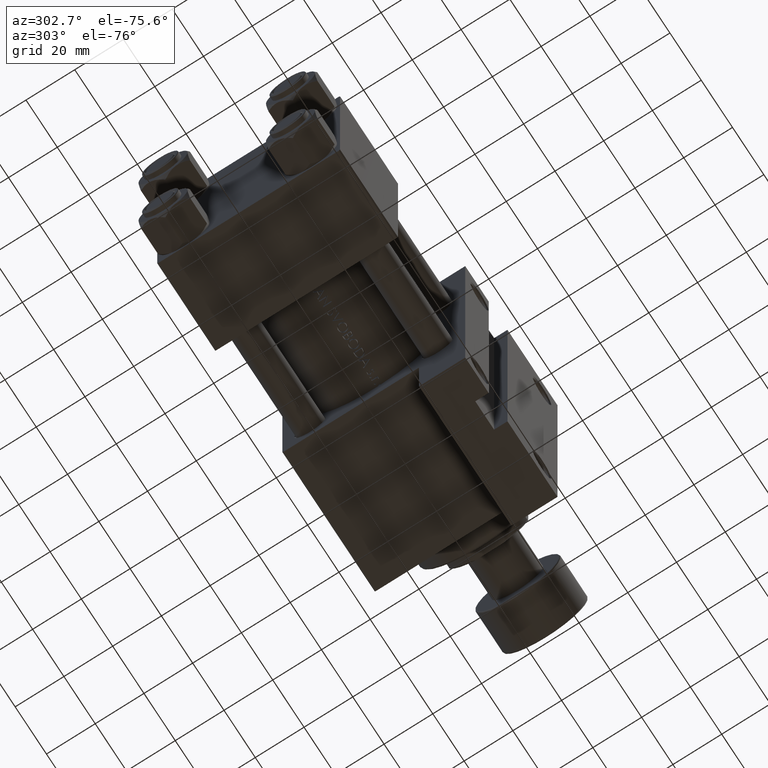
[diagram: clean part render]
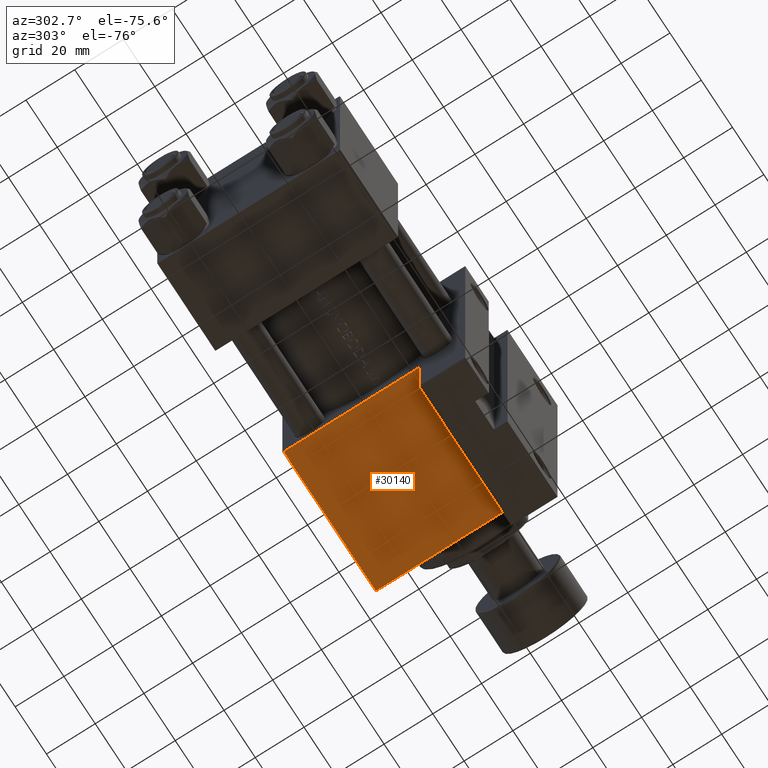
[diagram: same view with one face highlighted and labeled with its STEP entity id]
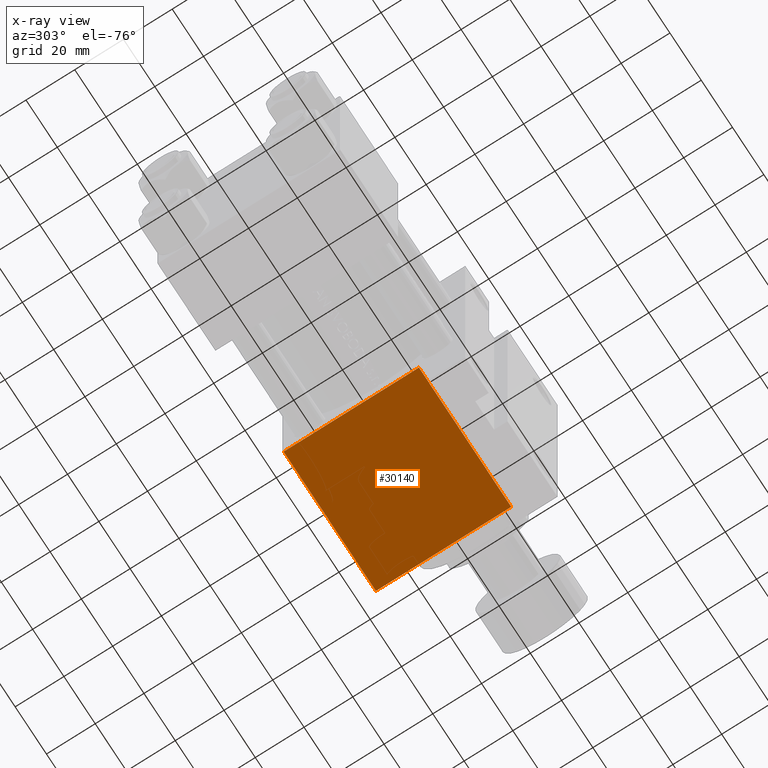
[diagram: x-ray of the same camera — body ghosted, the highlighted face saturated]
A machine part, auxiliary view. The second image highlights one B-rep face of the part: STEP entity #30140.
The next image is the same camera in x-ray: the body ghosted, the highlighted face saturated — about 0% of this face is hidden behind the body in this view.
In plain terms, the highlighted planar face has unit normal (0, 0, -1).
Its self-contained STEP definition (entity closure, byte-faithful):
#1514 = DIRECTION ( 'NONE',  ( -1.000000000000000000, 1.176083712526649442E-16, -0.000000000000000000 ) ) ;
#1730 = ORIENTED_EDGE ( 'NONE', *, *, #39782, .T. ) ;
#3433 = DIRECTION ( 'NONE',  ( 0.000000000000000000, -0.000000000000000000, 1.000000000000000000 ) ) ;
#3946 = VECTOR ( 'NONE', #26540, 1000.000000000000000 ) ;
#4006 = CARTESIAN_POINT ( 'NONE',  ( 79.99999999999998579, 37.50000000000000000, 37.49999999999999289 ) ) ;
#5352 = CARTESIAN_POINT ( 'NONE',  ( 79.99999999999998579, 37.50000000000000000, 36.99999999999999289 ) ) ;
#7564 = CARTESIAN_POINT ( 'NONE',  ( 138.9999999999999716, 37.50000000000000000, 36.99999999999999289 ) ) ;
#7907 = CARTESIAN_POINT ( 'NONE',  ( 138.9999999999999716, 37.50000000000000000, 36.99999999999999289 ) ) ;
#10197 = ORIENTED_EDGE ( 'NONE', *, *, #38972, .T. ) ;
#10306 = VERTEX_POINT ( 'NONE', #48958 ) ;
#11466 = LINE ( 'NONE', #4006, #40967 ) ;
#14417 = DIRECTION ( 'NONE',  ( -0.000000000000000000, 1.000000000000000000, 0.000000000000000000 ) ) ;
#16661 = ORIENTED_EDGE ( 'NONE', *, *, #47789, .T. ) ;
#17059 = EDGE_CURVE ( 'NONE', #32488, #22913, #11466, .T. ) ;
#17566 = LINE ( 'NONE', #7564, #3946 ) ;
#22697 = CARTESIAN_POINT ( 'NONE',  ( 79.99999999999998579, 37.50000000000000000, -18.50000000000000355 ) ) ;
#22913 = VERTEX_POINT ( 'NONE', #22697 ) ;
#23203 = DIRECTION ( 'NONE',  ( 0.000000000000000000, 0.000000000000000000, -1.000000000000000000 ) ) ;
#23281 = VERTEX_POINT ( 'NONE', #7907 ) ;
#24251 = AXIS2_PLACEMENT_3D ( 'NONE', #41613, #14417, #3433 ) ;
#24714 = CARTESIAN_POINT ( 'NONE',  ( 79.99999999999998579, 37.50000000000000000, -18.50000000000000000 ) ) ;
#24910 = LINE ( 'NONE', #36910, #42824 ) ;
#26540 = DIRECTION ( 'NONE',  ( 1.000000000000000000, 0.000000000000000000, 0.000000000000000000 ) ) ;
#26639 = PLANE ( 'NONE',  #24251 ) ;
#27449 = EDGE_LOOP ( 'NONE', ( #47549, #16661, #10197, #1730 ) ) ;
#28957 = LINE ( 'NONE', #24714, #42852 ) ;
#30140 = ADVANCED_FACE ( 'NONE', ( #45116 ), #26639, .T. ) ;
#32488 = VERTEX_POINT ( 'NONE', #5352 ) ;
#36910 = CARTESIAN_POINT ( 'NONE',  ( 138.9999999999999716, 37.50000000000000000, 37.49999999999999289 ) ) ;
#38972 = EDGE_CURVE ( 'NONE', #23281, #10306, #24910, .T. ) ;
#39782 = EDGE_CURVE ( 'NONE', #10306, #22913, #28957, .T. ) ;
#40967 = VECTOR ( 'NONE', #23203, 1000.000000000000000 ) ;
#41613 = CARTESIAN_POINT ( 'NONE',  ( 138.9999999999999716, 37.50000000000000000, 37.49999999999999289 ) ) ;
#42824 = VECTOR ( 'NONE', #48365, 1000.000000000000000 ) ;
#42852 = VECTOR ( 'NONE', #1514, 1000.000000000000000 ) ;
#45116 = FACE_OUTER_BOUND ( 'NONE', #27449, .T. ) ;
#47549 = ORIENTED_EDGE ( 'NONE', *, *, #17059, .F. ) ;
#47789 = EDGE_CURVE ( 'NONE', #32488, #23281, #17566, .T. ) ;
#48365 = DIRECTION ( 'NONE',  ( 0.000000000000000000, 0.000000000000000000, -1.000000000000000000 ) ) ;
#48958 = CARTESIAN_POINT ( 'NONE',  ( 138.9999999999999432, 37.49999999999999289, -18.50000000000000000 ) ) ;